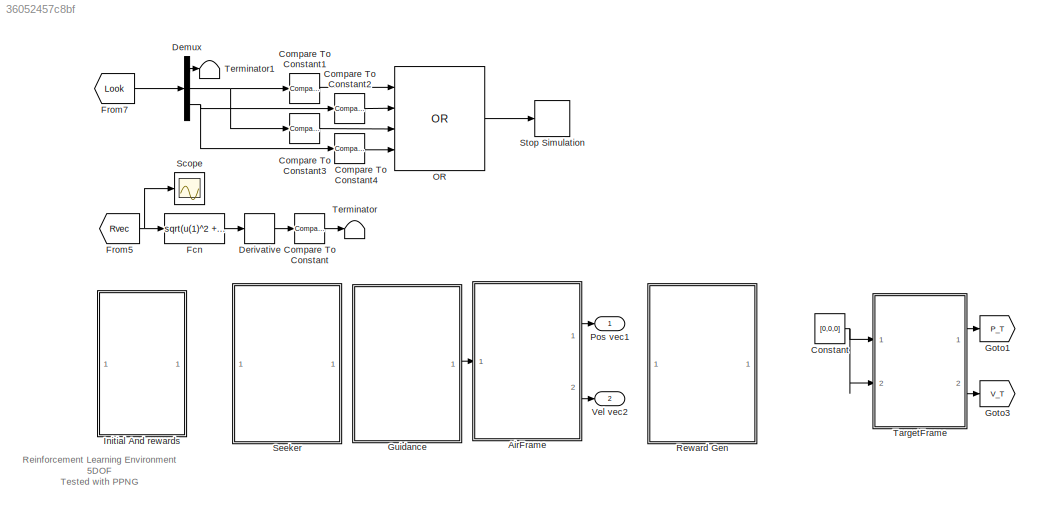
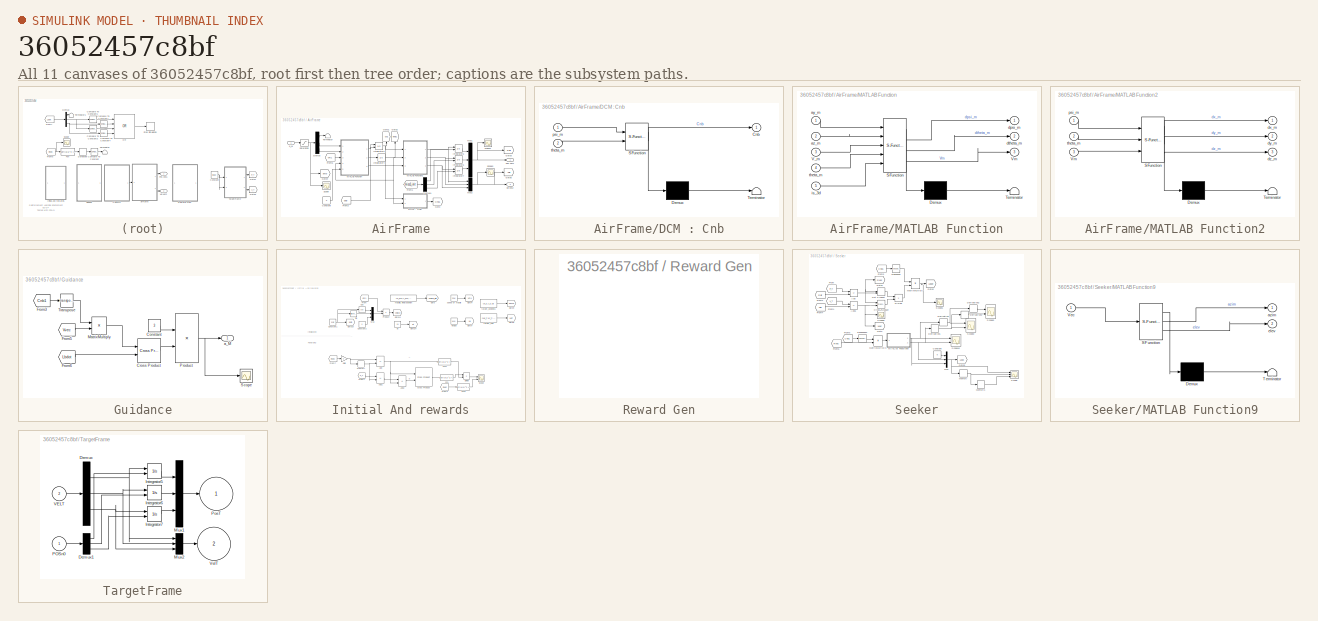
[diagram: thumbnail index - all 11 canvases of the model, root first then tree order]
MODEL slx_36052457c8bf
KIND model
CONFIG AbsTol = auto
CONFIG EnableMultiTasking = off
CONFIG FixedStep = 0.01
CONFIG MaxStep = auto
CONFIG MinStep = auto
CONFIG RelTol = 1e-3
CONFIG SampleTimeConstraint = Unconstrained
CONFIG Solver = FixedStepAuto
CONFIG SolverName = FixedStepAuto
CONFIG StartTime = 0.0
CONFIG StopTime = 200
BLOCK [SubSystem] AirFrame
  Ports = [1, 2]
  RequestExecContextInheritance = off
BLOCK [Constant] AirFrame/Constant
  Value = 0
BLOCK [SubSystem] AirFrame/DCM : Cnb
  ErrorFcn = Stateflow.Translate.translate
  PermitHierarchicalResolution = ExplicitOnly
  Ports = [2, 1]
  RequestExecContextInheritance = off
  SFBlockType = MATLAB Function
  TreatAsAtomicUnit = on
BLOCK [Demux] AirFrame/DCM : Cnb/ Demux 
  Outputs = 1
  Ports = [1, 1]
BLOCK [S-Function] AirFrame/DCM : Cnb/ SFunction 
  EnableBusSupport = on
  FunctionName = sf_sfun
  PortCounts = [2 2]
  Ports = [2, 2]
  SFcnIsStateOwnerBlock = off
  SFunctionDeploymentMode = off
  Tag = Stateflow S-Function 1
BLOCK [Terminator] AirFrame/DCM : Cnb/ Terminator 
BLOCK [Outport] AirFrame/DCM : Cnb/Cnb
  VectorParamsAs1DForOutWhenUnconnected = off
BLOCK [Inport] AirFrame/DCM : Cnb/psi_m
BLOCK [Inport] AirFrame/DCM : Cnb/theta_m
  Port = 2
BLOCK [Demux] AirFrame/Demux
  Outputs = 3
  Ports = [1, 3]
BLOCK [Demux] AirFrame/Demux1
  Outputs = 3
  Ports = [1, 3]
BLOCK [From] AirFrame/From1
  GotoTag = miss1_init
  TagVisibility = global
BLOCK [From] AirFrame/From2
  GotoTag = psi0
  TagVisibility = global
BLOCK [From] AirFrame/From5
  GotoTag = Vm1
  TagVisibility = global
BLOCK [Goto] AirFrame/Goto
  GotoTag = Cnb1
  TagVisibility = global
BLOCK [Goto] AirFrame/Goto1
  GotoTag = psi1
  NameLocation = right
  TagVisibility = global
BLOCK [Goto] AirFrame/Goto2
  GotoTag = theta1
  NameLocation = right
  TagVisibility = global
BLOCK [Goto] AirFrame/Goto3
  GotoTag = Rdir
  TagVisibility = global
BLOCK [Goto] AirFrame/Goto4
  GotoTag = amb
  TagVisibility = global
BLOCK [Goto] AirFrame/Goto5
  GotoTag = Vdir
  TagVisibility = global
BLOCK [Integrator] AirFrame/Integrator3
  InitialConditionSource = external
  Ports = [2, 1]
BLOCK [Integrator] AirFrame/Integrator4
  Ports = [1, 1]
BLOCK [Integrator] AirFrame/Integrator5
  InitialConditionSource = external
  Ports = [2, 1]
BLOCK [Integrator] AirFrame/Integrator6
  InitialConditionSource = external
  Ports = [2, 1]
BLOCK [Integrator] AirFrame/Integrator7
  InitialConditionSource = external
  Ports = [2, 1]
BLOCK [SubSystem] AirFrame/MATLAB Function
  ErrorFcn = Stateflow.Translate.translate
  PermitHierarchicalResolution = ExplicitOnly
  Ports = [5, 3]
  RequestExecContextInheritance = off
  SFBlockType = MATLAB Function
  TreatAsAtomicUnit = on
BLOCK [Demux] AirFrame/MATLAB Function/ Demux 
  Outputs = 1
  Ports = [1, 1]
BLOCK [S-Function] AirFrame/MATLAB Function/ SFunction 
  EnableBusSupport = on
  FunctionName = sf_sfun
  PortCounts = [5 4]
  Ports = [5, 4]
  SFcnIsStateOwnerBlock = off
  SFunctionDeploymentMode = off
  Tag = Stateflow S-Function 24
BLOCK [Terminator] AirFrame/MATLAB Function/ Terminator 
BLOCK [Inport] AirFrame/MATLAB Function/V_m
  Port = 3
BLOCK [Outport] AirFrame/MATLAB Function/Vm
  Port = 3
  VectorParamsAs1DForOutWhenUnconnected = off
BLOCK [Inport] AirFrame/MATLAB Function/ay_m
BLOCK [Inport] AirFrame/MATLAB Function/az_m
  Port = 2
BLOCK [Outport] AirFrame/MATLAB Function/dpsi_m
  VectorParamsAs1DForOutWhenUnconnected = off
BLOCK [Outport] AirFrame/MATLAB Function/dtheta_m
  Port = 2
  VectorParamsAs1DForOutWhenUnconnected = off
BLOCK [Inport] AirFrame/MATLAB Function/is_3d
  Port = 5
BLOCK [Inport] AirFrame/MATLAB Function/theta_m
  Port = 4
BLOCK [SubSystem] AirFrame/MATLAB Function2
  ErrorFcn = Stateflow.Translate.translate
  PermitHierarchicalResolution = ExplicitOnly
  Ports = [3, 3]
  RequestExecContextInheritance = off
  SFBlockType = MATLAB Function
  TreatAsAtomicUnit = on
BLOCK [Demux] AirFrame/MATLAB Function2/ Demux 
  Outputs = 1
  Ports = [1, 1]
BLOCK [S-Function] AirFrame/MATLAB Function2/ SFunction 
  EnableBusSupport = on
  FunctionName = sf_sfun
  PortCounts = [3 4]
  Ports = [3, 4]
  SFcnIsStateOwnerBlock = off
  SFunctionDeploymentMode = off
  Tag = Stateflow S-Function 25
BLOCK [Terminator] AirFrame/MATLAB Function2/ Terminator 
BLOCK [Inport] AirFrame/MATLAB Function2/Vm
  Port = 3
BLOCK [Outport] AirFrame/MATLAB Function2/dx_m
  VectorParamsAs1DForOutWhenUnconnected = off
BLOCK [Outport] AirFrame/MATLAB Function2/dy_m
  Port = 2
  VectorParamsAs1DForOutWhenUnconnected = off
BLOCK [Outport] AirFrame/MATLAB Function2/dz_m
  Port = 3
  VectorParamsAs1DForOutWhenUnconnected = off
BLOCK [Inport] AirFrame/MATLAB Function2/psi_m
BLOCK [Inport] AirFrame/MATLAB Function2/theta_m
  Port = 2
BLOCK [Mux] AirFrame/Mux1
  DisplayOption = bar
  Inputs = 3
  Ports = [3, 1]
BLOCK [Mux] AirFrame/Mux2
  DisplayOption = bar
  Inputs = 3
  Ports = [3, 1]
BLOCK [Outport] AirFrame/Pos vec1
  VectorParamsAs1DForOutWhenUnconnected = off
BLOCK [Saturate] AirFrame/Saturation
  LinearizeAsGain = off
  LowerLimit = [0;-99;-99]
  UpperLimit = [0;99;99]
  ZeroCross = off
BLOCK [Scope] AirFrame/Scope
  Floating = off
  NumInputPorts = 1
  Ports = [1]
  ScopeSpecificationString = Simulink.scopes.TimeScopeBlockCfg('CurrentConfiguration', extmgr.ConfigurationSet(extmgr.Configuration('Core','General UI',true),extmgr.Configuration('Core','Source UI',true),extmgr.Configuration('Sources','WiredSimulink',true,'DataLoggingVariableName','ScopeData1'),extmgr.Configuration('Visuals','Time Domain',true,'SerializedDisplays',{struct('MinYLimReal','-62.5','MaxYLimReal','62.5','YLabelReal...<+1524ch>
BLOCK [Scope] AirFrame/Scope1
  Floating = off
  NumInputPorts = 1
  Ports = [1]
  ScopeSpecificationString = Simulink.scopes.TimeScopeBlockCfg('CurrentConfiguration', extmgr.ConfigurationSet(extmgr.Configuration('Core','General UI',true),extmgr.Configuration('Core','Source UI',true),extmgr.Configuration('Sources','WiredSimulink',true,'DataLoggingVariableName','ScopeData3'),extmgr.Configuration('Visuals','Time Domain',true,'SerializedDisplays',{struct('MinYLimReal','-1125.62717','MaxYLimReal','130.64452',...<+1490ch>
BLOCK [Scope] AirFrame/Scope3
  Floating = off
  NumInputPorts = 1
  Ports = [1]
  ScopeSpecificationString = Simulink.scopes.TimeScopeBlockCfg('CurrentConfiguration', extmgr.ConfigurationSet(extmgr.Configuration('Core','General UI',true),extmgr.Configuration('Core','Source UI',true),extmgr.Configuration('Sources','WiredSimulink',true),extmgr.Configuration('Visuals','Time Domain',true,'SerializedDisplays',{struct('MinYLimReal','-346.67616','MaxYLimReal','349.63068','YLabelReal','','MinYLimMag',' 0.00000',...<+1436ch>
BLOCK [Terminator] AirFrame/Terminator
BLOCK [Outport] AirFrame/Vel vec2
  Port = 2
  VectorParamsAs1DForOutWhenUnconnected = off
BLOCK [Inport] AirFrame/a_M
BLOCK [Reference] Compare To Constant  REF=simulink/Logic and Bit
Operations/Compare
To Constant
  Ports = [1, 1]
  SourceBlock = simulink/Logic and Bit\nOperations/Compare\nTo Constant
  SourceProductBaseCode = SL
  SourceType = Compare To Constant
BLOCK [Reference] Compare To Constant1  REF=simulink/Logic and Bit
Operations/Compare
To Constant
  Ports = [1, 1]
  SourceBlock = simulink/Logic and Bit\nOperations/Compare\nTo Constant
  SourceProductBaseCode = SL
  SourceType = Compare To Constant
BLOCK [Reference] Compare To Constant2  REF=simulink/Logic and Bit
Operations/Compare
To Constant
  Ports = [1, 1]
  SourceBlock = simulink/Logic and Bit\nOperations/Compare\nTo Constant
  SourceProductBaseCode = SL
  SourceType = Compare To Constant
BLOCK [Reference] Compare To Constant3  REF=simulink/Logic and Bit
Operations/Compare
To Constant
  Ports = [1, 1]
  SourceBlock = simulink/Logic and Bit\nOperations/Compare\nTo Constant
  SourceProductBaseCode = SL
  SourceType = Compare To Constant
BLOCK [Reference] Compare To Constant4  REF=simulink/Logic and Bit
Operations/Compare
To Constant
  Ports = [1, 1]
  SourceBlock = simulink/Logic and Bit\nOperations/Compare\nTo Constant
  SourceProductBaseCode = SL
  SourceType = Compare To Constant
BLOCK [Constant] Constant
  Value = [0,0,0]
BLOCK [Demux] Demux
  Outputs = 3
  Ports = [1, 3]
BLOCK [Derivative] Derivative
BLOCK [Fcn] Fcn
  Expr = sqrt(u(1)^2 + u(2)^2 + u(3)^2)
BLOCK [From] From5
  GotoTag = Rvec
  TagVisibility = global
BLOCK [From] From7
  GotoTag = Look
  TagVisibility = global
BLOCK [Goto] Goto1
  GotoTag = P_T
  TagVisibility = global
BLOCK [Goto] Goto3
  GotoTag = V_T
  TagVisibility = global
BLOCK [SubSystem] Guidance
  Ports = [0, 1]
  RequestExecContextInheritance = off
BLOCK [Constant] Guidance/Constant
  Value = 3
BLOCK [Reference] Guidance/Cross Product  REF=vrlib/Utilities/Cross Product
  Ports = [2, 1]
  SourceBlock = vrlib/Utilities/Cross Product
  SourceProductBaseCode = SL
  SourceType = Cross Product
BLOCK [From] Guidance/From3
  GotoTag = Cnb1
  TagVisibility = global
BLOCK [From] Guidance/From5
  GotoTag = Vvec
  TagVisibility = global
BLOCK [From] Guidance/From6
  GotoTag = Lbdot
  TagVisibility = global
BLOCK [Product] Guidance/MatrixMultiply
  Multiplication = Matrix(*)
  Ports = [2, 1]
BLOCK [Product] Guidance/Product
  Ports = [2, 1]
BLOCK [Scope] Guidance/Scope
  Floating = off
  NumInputPorts = 1
  Ports = [1]
  ScopeSpecificationString = Simulink.scopes.TimeScopeBlockCfg('CurrentConfiguration', extmgr.ConfigurationSet(extmgr.Configuration('Core','General UI',true),extmgr.Configuration('Core','Source UI',true),extmgr.Configuration('Sources','WiredSimulink',true,'DataLoggingVariableName','ScopeData4'),extmgr.Configuration('Visuals','Time Domain',true,'SerializedDisplays',{struct('MinYLimReal','-126.23467','MaxYLimReal','874.16088','...<+1431ch>
BLOCK [Math] Guidance/Transpose
  Operator = transpose
  Ports = [1, 1]
BLOCK [Outport] Guidance/a_M
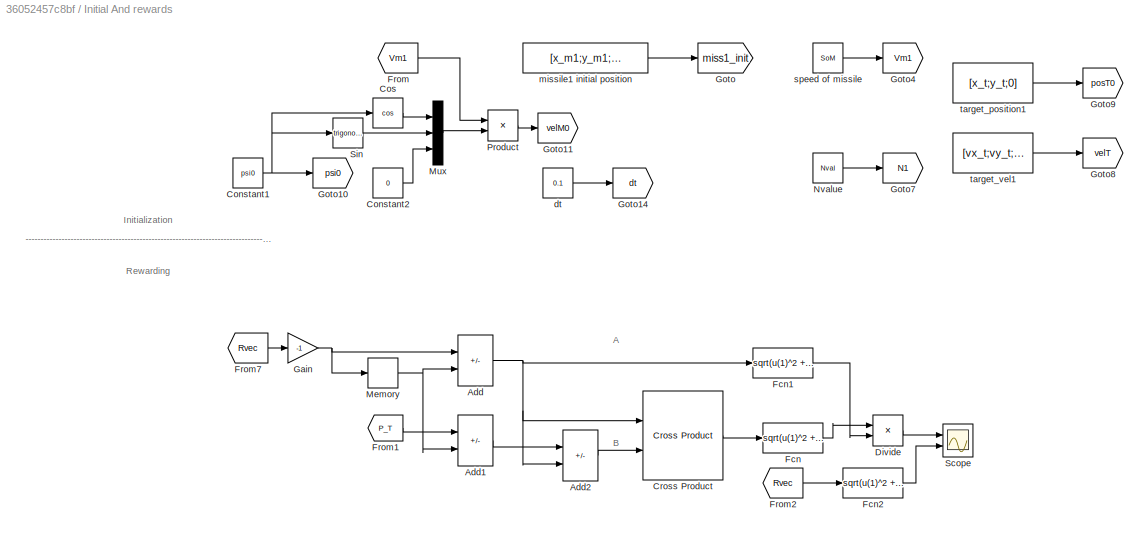
BLOCK [SubSystem] Initial And rewards
  NameLocation = top
  Ports = []
  RequestExecContextInheritance = off
BLOCK [Sum] Initial And rewards/Add
  IconShape = rectangular
  Inputs = +-
  Ports = [2, 1]
BLOCK [Sum] Initial And rewards/Add1
  IconShape = rectangular
  Inputs = +-
  Ports = [2, 1]
BLOCK [Sum] Initial And rewards/Add2
  IconShape = rectangular
  Inputs = +-
  Ports = [2, 1]
BLOCK [Constant] Initial And rewards/Constant1
  Value = psi0
BLOCK [Constant] Initial And rewards/Constant2
  Value = 0
BLOCK [Trigonometry] Initial And rewards/Cos
  Operator = cos
  Ports = [1, 1]
BLOCK [Reference] Initial And rewards/Cross Product  REF=vrlib/Utilities/Cross Product
  Ports = [2, 1]
  SourceBlock = vrlib/Utilities/Cross Product
  SourceProductBaseCode = SL
  SourceType = Cross Product
BLOCK [Product] Initial And rewards/Divide
  Inputs = */
  Ports = [2, 1]
BLOCK [Fcn] Initial And rewards/Fcn
  Expr = sqrt(u(1)^2 + u(2)^2 + u(3)^2)
BLOCK [Fcn] Initial And rewards/Fcn1
  Expr = sqrt(u(1)^2 + u(2)^2 + u(3)^2)
BLOCK [Fcn] Initial And rewards/Fcn2
  Expr = sqrt(u(1)^2 + u(2)^2 + u(3)^2)
BLOCK [From] Initial And rewards/From
  GotoTag = Vm1
  TagVisibility = global
BLOCK [From] Initial And rewards/From1
  GotoTag = P_T
  TagVisibility = global
BLOCK [From] Initial And rewards/From2
  GotoTag = Rvec
  TagVisibility = global
BLOCK [From] Initial And rewards/From7
  GotoTag = Rvec
  TagVisibility = global
BLOCK [Gain] Initial And rewards/Gain
  Gain = -1
BLOCK [Goto] Initial And rewards/Goto
  GotoTag = miss1_init
  TagVisibility = global
BLOCK [Goto] Initial And rewards/Goto10
  GotoTag = psi0
  TagVisibility = global
BLOCK [Goto] Initial And rewards/Goto11
  GotoTag = velM0
  TagVisibility = global
BLOCK [Goto] Initial And rewards/Goto14
  GotoTag = dt
  TagVisibility = global
BLOCK [Goto] Initial And rewards/Goto4
  GotoTag = Vm1
  TagVisibility = global
BLOCK [Goto] Initial And rewards/Goto7
  GotoTag = N1
  TagVisibility = global
BLOCK [Goto] Initial And rewards/Goto8
  GotoTag = velT
  TagVisibility = global
BLOCK [Goto] Initial And rewards/Goto9
  GotoTag = posT0
  TagVisibility = global
BLOCK [Memory] Initial And rewards/Memory
  InitialCondition = [x_m1;y_m1;z_m1]
  LinearizeAsDelay = on
BLOCK [Mux] Initial And rewards/Mux
  DisplayOption = bar
  Inputs = 3
  Ports = [3, 1]
BLOCK [Constant] Initial And rewards/Nvalue
  Value = Nval
BLOCK [Product] Initial And rewards/Product
  Ports = [2, 1]
BLOCK [Scope] Initial And rewards/Scope
  Floating = off
  NumInputPorts = 2
  Ports = [2]
  ScopeSpecificationString = Simulink.scopes.TimeScopeBlockCfg('CurrentConfiguration', extmgr.ConfigurationSet(extmgr.Configuration('Core','General UI',true),extmgr.Configuration('Core','Source UI',true),extmgr.Configuration('Sources','WiredSimulink',true,'DataLoggingVariableName','ScopeData10'),extmgr.Configuration('Visuals','Time Domain',true,'SerializedDisplays',{struct('MinYLimReal','-1403.12138','MaxYLimReal','12628.0936...<+1473ch>
BLOCK [Trigonometry] Initial And rewards/Sin
  Ports = [1, 1]
BLOCK [Constant] Initial And rewards/dt
  Value = 0.1
BLOCK [Constant] Initial And rewards/missile1 initial position
  Value = [x_m1;y_m1;z_m1]
BLOCK [Constant] Initial And rewards/speed of missile
  Value = SoM
BLOCK [Constant] Initial And rewards/target_position1
  Value = [x_t;y_t;0]
BLOCK [Constant] Initial And rewards/target_vel1
  Value = [vx_t;vy_t;0]
BLOCK [Logic] OR
  AllPortsSameDT = off
  IconShape = distinctive
  Inputs = 4
  Operator = OR
  OutDataTypeStr = boolean
  Ports = [4, 1]
BLOCK [Outport] Pos vec1
  VectorParamsAs1DForOutWhenUnconnected = off
BLOCK [SubSystem] Reward Gen
  Ports = []
  RequestExecContextInheritance = off
BLOCK [Scope] Scope
  Floating = off
  NumInputPorts = 1
  Ports = [1]
  ScopeSpecificationString = Simulink.scopes.TimeScopeBlockCfg('CurrentConfiguration', extmgr.ConfigurationSet(extmgr.Configuration('Core','General UI',true),extmgr.Configuration('Core','Source UI',true),extmgr.Configuration('Sources','WiredSimulink',true,'DataLoggingVariableName','ScopeData5'),extmgr.Configuration('Visuals','Time Domain',true,'SerializedDisplays',{struct('MinYLimReal','-6875.00000','MaxYLimReal','11875.00000...<+1461ch>
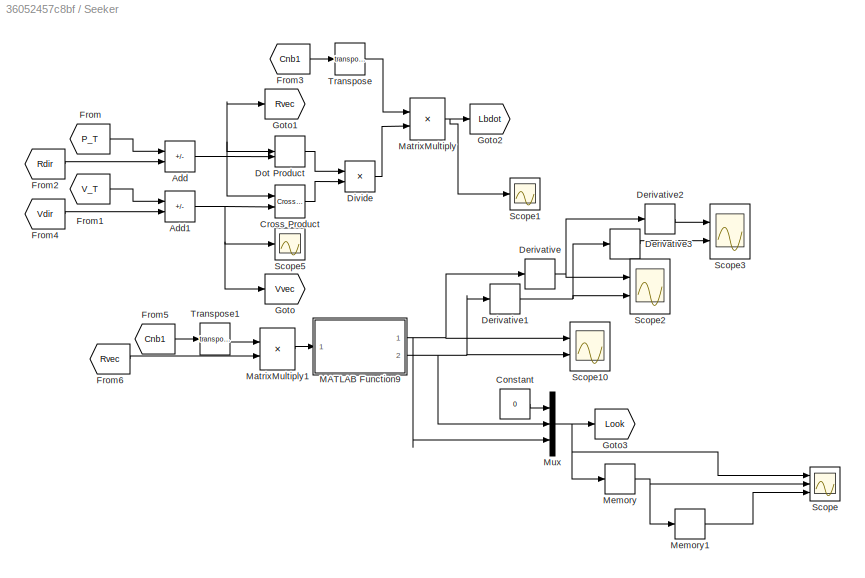
BLOCK [SubSystem] Seeker
  Ports = []
  RequestExecContextInheritance = off
BLOCK [Sum] Seeker/Add
  IconShape = rectangular
  Inputs = +-
  Ports = [2, 1]
BLOCK [Sum] Seeker/Add1
  IconShape = rectangular
  Inputs = +-
  Ports = [2, 1]
BLOCK [Constant] Seeker/Constant
  Value = 0
BLOCK [Reference] Seeker/Cross Product  REF=vrlib/Utilities/Cross Product
  Ports = [2, 1]
  SourceBlock = vrlib/Utilities/Cross Product
  SourceProductBaseCode = SL
  SourceType = Cross Product
BLOCK [Derivative] Seeker/Derivative
BLOCK [Derivative] Seeker/Derivative1
BLOCK [Derivative] Seeker/Derivative2
BLOCK [Derivative] Seeker/Derivative3
BLOCK [Product] Seeker/Divide
  Inputs = /*
  Ports = [2, 1]
BLOCK [DotProduct] Seeker/Dot Product
  OutDataTypeStr = Inherit: Inherit via internal rule
BLOCK [From] Seeker/From
  GotoTag = P_T
  TagVisibility = global
BLOCK [From] Seeker/From1
  GotoTag = V_T
  TagVisibility = global
BLOCK [From] Seeker/From2
  GotoTag = Rdir
  TagVisibility = global
BLOCK [From] Seeker/From3
  GotoTag = Cnb1
  TagVisibility = global
BLOCK [From] Seeker/From4
  GotoTag = Vdir
  TagVisibility = global
BLOCK [From] Seeker/From5
  GotoTag = Cnb1
  TagVisibility = global
BLOCK [From] Seeker/From6
  GotoTag = Rvec
  TagVisibility = global
BLOCK [Goto] Seeker/Goto
  GotoTag = Vvec
  TagVisibility = global
BLOCK [Goto] Seeker/Goto1
  GotoTag = Rvec
  TagVisibility = global
BLOCK [Goto] Seeker/Goto2
  GotoTag = Lbdot
  TagVisibility = global
BLOCK [Goto] Seeker/Goto3
  GotoTag = Look
  TagVisibility = global
BLOCK [SubSystem] Seeker/MATLAB Function9
  ErrorFcn = Stateflow.Translate.translate
  PermitHierarchicalResolution = ExplicitOnly
  Ports = [1, 2]
  RequestExecContextInheritance = off
  SFBlockType = MATLAB Function
  TreatAsAtomicUnit = on
BLOCK [Demux] Seeker/MATLAB Function9/ Demux 
  Outputs = 1
  Ports = [1, 1]
BLOCK [S-Function] Seeker/MATLAB Function9/ SFunction 
  EnableBusSupport = on
  FunctionName = sf_sfun
  PortCounts = [1 3]
  Ports = [1, 3]
  SFcnIsStateOwnerBlock = off
  SFunctionDeploymentMode = off
  Tag = Stateflow S-Function 10
BLOCK [Terminator] Seeker/MATLAB Function9/ Terminator 
BLOCK [Inport] Seeker/MATLAB Function9/Vec
BLOCK [Outport] Seeker/MATLAB Function9/azim
BLOCK [Outport] Seeker/MATLAB Function9/elev
  Port = 2
BLOCK [Product] Seeker/MatrixMultiply
  Multiplication = Matrix(*)
  Ports = [2, 1]
BLOCK [Product] Seeker/MatrixMultiply1
  Multiplication = Matrix(*)
  Ports = [2, 1]
BLOCK [Memory] Seeker/Memory
  LinearizeAsDelay = on
BLOCK [Memory] Seeker/Memory1
  LinearizeAsDelay = on
BLOCK [Mux] Seeker/Mux
  DisplayOption = bar
  Inputs = 3
  Ports = [3, 1]
BLOCK [Scope] Seeker/Scope
  Floating = off
  NumInputPorts = 3
  Ports = [3]
  ScopeSpecificationString = Simulink.scopes.TimeScopeBlockCfg('CurrentConfiguration', extmgr.ConfigurationSet(extmgr.Configuration('Core','General UI',true),extmgr.Configuration('Core','Source UI',true),extmgr.Configuration('Sources','WiredSimulink',true,'DataLoggingVariableName','ScopeData11'),extmgr.Configuration('Visuals','Time Domain',true,'SerializedDisplays',{struct('MinYLimReal','-3.21547','MaxYLimReal','0.12727','YLa...<+1767ch>
BLOCK [Scope] Seeker/Scope1
  Floating = off
  NumInputPorts = 1
  Ports = [1]
  ScopeSpecificationString = Simulink.scopes.TimeScopeBlockCfg('CurrentConfiguration', extmgr.ConfigurationSet(extmgr.Configuration('Core','General UI',true),extmgr.Configuration('Core','Source UI',true),extmgr.Configuration('Sources','WiredSimulink',true,'DataLoggingVariableName','ScopeData7'),extmgr.Configuration('Visuals','Time Domain',true,'SerializedDisplays',{struct('MinYLimReal','-1.04067','MaxYLimReal','0.15028','YLab...<+1468ch>
BLOCK [Scope] Seeker/Scope10
  Floating = off
  NumInputPorts = 2
  Ports = [2]
  ScopeSpecificationString = Simulink.scopes.TimeScopeBlockCfg('CurrentConfiguration', extmgr.ConfigurationSet(extmgr.Configuration('Core','General UI',true),extmgr.Configuration('Core','Source UI',true),extmgr.Configuration('Sources','WiredSimulink',true,'DataLoggingVariableName','ScopeData6'),extmgr.Configuration('Visuals','Time Domain',true,'SerializedDisplays',{struct('MinYLimReal','-3.57622','MaxYLimReal','0.77004','YLab...<+1460ch>
BLOCK [Scope] Seeker/Scope2
  Floating = off
  NumInputPorts = 2
  Ports = [2]
  ScopeSpecificationString = Simulink.scopes.TimeScopeBlockCfg('CurrentConfiguration', extmgr.ConfigurationSet(extmgr.Configuration('Core','General UI',true),extmgr.Configuration('Core','Source UI',true),extmgr.Configuration('Sources','WiredSimulink',true,'DataLoggingVariableName','ScopeData8'),extmgr.Configuration('Visuals','Time Domain',true,'SerializedDisplays',{struct('MinYLimReal','-353.43343','MaxYLimReal','39.30962','Y...<+1450ch>
BLOCK [Scope] Seeker/Scope3
  Floating = off
  NumInputPorts = 2
  Ports = [2]
  ScopeSpecificationString = Simulink.scopes.TimeScopeBlockCfg('CurrentConfiguration', extmgr.ConfigurationSet(extmgr.Configuration('Core','General UI',true),extmgr.Configuration('Core','Source UI',true),extmgr.Configuration('Sources','WiredSimulink',true,'DataLoggingVariableName','ScopeData9'),extmgr.Configuration('Visuals','Time Domain',true,'SerializedDisplays',{struct('MinYLimReal','-0.01046','MaxYLimReal','0.01268','YLab...<+1458ch>
BLOCK [Scope] Seeker/Scope5
  Floating = off
  NumInputPorts = 1
  Ports = [1]
  ScopeSpecificationString = Simulink.scopes.TimeScopeBlockCfg('CurrentConfiguration', extmgr.ConfigurationSet(extmgr.Configuration('Core','General UI',true),extmgr.Configuration('Core','Source UI',true),extmgr.Configuration('Sources','WiredSimulink',true,'DataLoggingVariableName','ScopeData2'),extmgr.Configuration('Visuals','Time Domain',true,'SerializedDisplays',{struct('MinYLimReal','-336.27459','MaxYLimReal','226.47129','...<+1453ch>
BLOCK [Math] Seeker/Transpose
  Operator = transpose
  Ports = [1, 1]
BLOCK [Math] Seeker/Transpose1
  Operator = transpose
  Ports = [1, 1]
BLOCK [Stop] Stop Simulation
BLOCK [SubSystem] TargetFrame
  Ports = [2, 2]
  RequestExecContextInheritance = off
BLOCK [Demux] TargetFrame/Demux
  Outputs = 3
  Ports = [1, 3]
BLOCK [Demux] TargetFrame/Demux1
  Outputs = 3
  Ports = [1, 3]
BLOCK [Integrator] TargetFrame/Integrator5
  InitialConditionSource = external
  Ports = [2, 1]
BLOCK [Integrator] TargetFrame/Integrator6
  InitialConditionSource = external
  Ports = [2, 1]
BLOCK [Integrator] TargetFrame/Integrator7
  InitialConditionSource = external
  Ports = [2, 1]
BLOCK [Mux] TargetFrame/Mux1
  DisplayOption = bar
  Inputs = 3
  Ports = [3, 1]
BLOCK [Mux] TargetFrame/Mux2
  DisplayOption = bar
  Inputs = 3
  Ports = [3, 1]
BLOCK [Inport] TargetFrame/POSn0
BLOCK [Outport] TargetFrame/PosT
  VectorParamsAs1DForOutWhenUnconnected = off
BLOCK [Inport] TargetFrame/VELT
  Port = 2
BLOCK [Outport] TargetFrame/VelT
  Port = 2
  VectorParamsAs1DForOutWhenUnconnected = off
BLOCK [Terminator] Terminator
BLOCK [Terminator] Terminator1
BLOCK [Outport] Vel vec2
  Port = 2
  VectorParamsAs1DForOutWhenUnconnected = off
ANNOTATION (root): Reinforcement Learning Environment 5DOF Tested with PPNG
ANNOTATION Initial And rewards: Initialization
ANNOTATION Initial And rewards: Rewarding
ANNOTATION Initial And rewards: ---------------------------------------------------------------------------------------------------------
ANNOTATION Initial And rewards: A
ANNOTATION Initial And rewards: B
LINE AirFrame/Constant:1 -> AirFrame/MATLAB Function:5
LINE AirFrame/DCM : Cnb:1 -> AirFrame/Goto:1
LINE AirFrame/Demux1:1 -> AirFrame/Integrator5:2
LINE AirFrame/Demux1:2 -> AirFrame/Integrator6:2
LINE AirFrame/Demux1:3 -> AirFrame/Integrator7:2
LINE AirFrame/Demux:1 -> AirFrame/Terminator:1
LINE AirFrame/Demux:2 -> AirFrame/MATLAB Function:1
LINE AirFrame/Demux:3 -> AirFrame/MATLAB Function:2
LINE AirFrame/From1:1 -> AirFrame/Demux1:1
LINE AirFrame/From2:1 -> AirFrame/Integrator3:2
LINE AirFrame/From5:1 -> AirFrame/MATLAB Function:3
NET AirFrame/Integrator3:1 -> AirFrame/DCM : Cnb:1, AirFrame/Goto1:1, AirFrame/MATLAB Function2:1
NET AirFrame/Integrator4:1 -> AirFrame/DCM : Cnb:2, AirFrame/Goto2:1, AirFrame/MATLAB Function2:2, AirFrame/MATLAB Function:4
LINE AirFrame/Integrator5:1 -> AirFrame/Mux1:1
LINE AirFrame/Integrator6:1 -> AirFrame/Mux1:2
LINE AirFrame/Integrator7:1 -> AirFrame/Mux1:3
NET AirFrame/MATLAB Function2:1 -> AirFrame/Integrator5:1, AirFrame/Mux2:1
NET AirFrame/MATLAB Function2:2 -> AirFrame/Integrator6:1, AirFrame/Mux2:2
NET AirFrame/MATLAB Function2:3 -> AirFrame/Integrator7:1, AirFrame/Mux2:3
LINE AirFrame/MATLAB Function:1 -> AirFrame/Integrator3:1
LINE AirFrame/MATLAB Function:2 -> AirFrame/Integrator4:1
LINE AirFrame/MATLAB Function:3 -> AirFrame/MATLAB Function2:3
NET AirFrame/Mux1:1 -> AirFrame/Goto3:1, AirFrame/Pos vec1:1, AirFrame/Scope1:1
NET AirFrame/Mux2:1 -> AirFrame/Goto5:1, AirFrame/Scope3:1, AirFrame/Vel vec2:1
NET AirFrame/Saturation:1 -> AirFrame/Demux:1, AirFrame/Goto4:1, AirFrame/Scope:1
LINE AirFrame/a_M:1 -> AirFrame/Saturation:1
LINE AirFrame:1 -> Pos vec1:1
LINE AirFrame:2 -> Vel vec2:1
LINE Compare To Constant1:1 -> OR:1
LINE Compare To Constant2:1 -> OR:2
LINE Compare To Constant3:1 -> OR:3
LINE Compare To Constant4:1 -> OR:4
LINE Compare To Constant:1 -> Terminator:1
NET Constant:1 -> TargetFrame:1, TargetFrame:2
LINE Demux:1 -> Terminator1:1
NET Demux:2 -> Compare To Constant1:1, Compare To Constant3:1
NET Demux:3 -> Compare To Constant2:1, Compare To Constant4:1
LINE Derivative:1 -> Compare To Constant:1
LINE Fcn:1 -> Derivative:1
NET From5:1 -> Fcn:1, Scope:1
LINE From7:1 -> Demux:1
LINE Guidance/Constant:1 -> Guidance/Product:1
LINE Guidance/Cross Product:1 -> Guidance/Product:2
LINE Guidance/From3:1 -> Guidance/Transpose:1
LINE Guidance/From5:1 -> Guidance/MatrixMultiply:2
LINE Guidance/From6:1 -> Guidance/Cross Product:2
LINE Guidance/MatrixMultiply:1 -> Guidance/Cross Product:1
NET Guidance/Product:1 -> Guidance/Scope:1, Guidance/a_M:1
LINE Guidance/Transpose:1 -> Guidance/MatrixMultiply:1
LINE Guidance:1 -> AirFrame:1
LINE Initial And rewards/Add1:1 -> Initial And rewards/Add2:1
LINE Initial And rewards/Add2:1 -> Initial And rewards/Cross Product:2
NET Initial And rewards/Add:1 -> Initial And rewards/Add2:2, Initial And rewards/Cross Product:1, Initial And rewards/Fcn1:1
NET Initial And rewards/Constant1:1 -> Initial And rewards/Cos:1, Initial And rewards/Goto10:1, Initial And rewards/Sin:1
LINE Initial And rewards/Constant2:1 -> Initial And rewards/Mux:3
LINE Initial And rewards/Cos:1 -> Initial And rewards/Mux:1
LINE Initial And rewards/Cross Product:1 -> Initial And rewards/Fcn:1
LINE Initial And rewards/Divide:1 -> Initial And rewards/Scope:1
LINE Initial And rewards/Fcn1:1 -> Initial And rewards/Divide:2
LINE Initial And rewards/Fcn2:1 -> Initial And rewards/Scope:2
LINE Initial And rewards/Fcn:1 -> Initial And rewards/Divide:1
LINE Initial And rewards/From1:1 -> Initial And rewards/Add1:1
LINE Initial And rewards/From2:1 -> Initial And rewards/Fcn2:1
LINE Initial And rewards/From7:1 -> Initial And rewards/Gain:1
LINE Initial And rewards/From:1 -> Initial And rewards/Product:1
NET Initial And rewards/Gain:1 -> Initial And rewards/Add:1, Initial And rewards/Memory:1
NET Initial And rewards/Memory:1 -> Initial And rewards/Add1:2, Initial And rewards/Add:2
LINE Initial And rewards/Mux:1 -> Initial And rewards/Product:2
LINE Initial And rewards/Nvalue:1 -> Initial And rewards/Goto7:1
LINE Initial And rewards/Product:1 -> Initial And rewards/Goto11:1
LINE Initial And rewards/Sin:1 -> Initial And rewards/Mux:2
LINE Initial And rewards/dt:1 -> Initial And rewards/Goto14:1
LINE Initial And rewards/missile1 initial position:1 -> Initial And rewards/Goto:1
LINE Initial And rewards/speed of missile:1 -> Initial And rewards/Goto4:1
LINE Initial And rewards/target_position1:1 -> Initial And rewards/Goto9:1
LINE Initial And rewards/target_vel1:1 -> Initial And rewards/Goto8:1
LINE OR:1 -> Stop Simulation:1
NET Seeker/Add1:1 -> Seeker/Cross Product:2, Seeker/Goto:1, Seeker/Scope5:1
NET Seeker/Add:1 -> Seeker/Cross Product:1, Seeker/Dot Product:1, Seeker/Dot Product:2, Seeker/Goto1:1
LINE Seeker/Constant:1 -> Seeker/Mux:1
LINE Seeker/Cross Product:1 -> Seeker/Divide:2
NET Seeker/Derivative1:1 -> Seeker/Derivative3:1, Seeker/Scope2:2
LINE Seeker/Derivative2:1 -> Seeker/Scope3:1
LINE Seeker/Derivative3:1 -> Seeker/Scope3:2
NET Seeker/Derivative:1 -> Seeker/Derivative2:1, Seeker/Scope2:1
LINE Seeker/Divide:1 -> Seeker/MatrixMultiply:2
LINE Seeker/Dot Product:1 -> Seeker/Divide:1
LINE Seeker/From1:1 -> Seeker/Add1:1
LINE Seeker/From2:1 -> Seeker/Add:2
LINE Seeker/From3:1 -> Seeker/Transpose:1
LINE Seeker/From4:1 -> Seeker/Add1:2
LINE Seeker/From5:1 -> Seeker/Transpose1:1
LINE Seeker/From6:1 -> Seeker/MatrixMultiply1:2
LINE Seeker/From:1 -> Seeker/Add:1
NET Seeker/MATLAB Function9:1 -> Seeker/Derivative:1, Seeker/Mux:3, Seeker/Scope10:1
NET Seeker/MATLAB Function9:2 -> Seeker/Derivative1:1, Seeker/Mux:2, Seeker/Scope10:2
LINE Seeker/MatrixMultiply1:1 -> Seeker/MATLAB Function9:1
NET Seeker/MatrixMultiply:1 -> Seeker/Goto2:1, Seeker/Scope1:1
LINE Seeker/Memory1:1 -> Seeker/Scope:3
NET Seeker/Memory:1 -> Seeker/Memory1:1, Seeker/Scope:2
NET Seeker/Mux:1 -> Seeker/Goto3:1, Seeker/Memory:1, Seeker/Scope:1
LINE Seeker/Transpose1:1 -> Seeker/MatrixMultiply1:1
LINE Seeker/Transpose:1 -> Seeker/MatrixMultiply:1
LINE TargetFrame/Demux1:1 -> TargetFrame/Integrator5:2
LINE TargetFrame/Demux1:2 -> TargetFrame/Integrator6:2
LINE TargetFrame/Demux1:3 -> TargetFrame/Integrator7:2
NET TargetFrame/Demux:1 -> TargetFrame/Integrator5:1, TargetFrame/Mux2:1
NET TargetFrame/Demux:2 -> TargetFrame/Integrator6:1, TargetFrame/Mux2:2
NET TargetFrame/Demux:3 -> TargetFrame/Integrator7:1, TargetFrame/Mux2:3
LINE TargetFrame/Integrator5:1 -> TargetFrame/Mux1:1
LINE TargetFrame/Integrator6:1 -> TargetFrame/Mux1:2
LINE TargetFrame/Integrator7:1 -> TargetFrame/Mux1:3
LINE TargetFrame/Mux1:1 -> TargetFrame/PosT:1
LINE TargetFrame/Mux2:1 -> TargetFrame/VelT:1
LINE TargetFrame/POSn0:1 -> TargetFrame/Demux1:1
LINE TargetFrame/VELT:1 -> TargetFrame/Demux:1
LINE TargetFrame:1 -> Goto1:1
LINE TargetFrame:2 -> Goto3:1
note: NET lines group one-source signal fan-out (src -> all destinations, sorted); 1:1 wires keep LINE
CHART AirFrame/DCM : Cnb states=1 transitions=1
  STATE_LABEL 'eML_blk_kernel()'
  STATE_LABEL 'SCRIPT:\nfunction Cnb = fcn(psi_m, theta_m)\n\nCnb = [ cos(psi_m)*cos(theta_m),    -sin(psi_m),    cos(psi_m)*sin(theta_m);\n        sin(psi_m)*cos(theta_m),    cos(psi_m),     sin(psi_m)*sin(theta_m);\n        -sin(theta_m),              0,              cos(theta_m)];\n\nend\n% C_bn = [    cos(psi)*cos(the),  sin(psi)*cos(the),  -sin(the)   ;\n%             -sin(psi),          cos(psi),           0       ...<+74ch>'
CHART Seeker/MATLAB Function9 states=1 transitions=1
  STATE_LABEL 'eML_blk_kernel()'
  STATE_LABEL 'SCRIPT:\nfunction [azim, elev] = azim2elev(Vec)\n    \n    azim = atan2(Vec(2), Vec(1));\n    elev = atan2(-Vec(3), sqrt(Vec(1)^2 + Vec(2)^2));\n'
CHART AirFrame/MATLAB Function states=1 transitions=1
  STATE_LABEL 'eML_blk_kernel()'
  STATE_LABEL 'SCRIPT:\nfunction [dpsi_m, dtheta_m, Vm] = fcn(ay_m, az_m, V_m, theta_m, is_3d)\n\n%g = 9.81;\n\n%dpsi_m = ay_m/(V_m*cos(theta_m));\n%dtheta_m = -(az_m+g*cos(theta_m))/V_m;\n%Vm = V_m;\n    g = 9.81*is_3d;\n    if V_m <= eps\n        dpsi_m = 0;\n        dtheta_m = 0;\n    else\n        dpsi_m = ay_m/(V_m*cos(theta_m));\n        dtheta_m = -(az_m+g*cos(theta_m))/V_m;\n    end\n    Vm = V_m;\n\nend\n\n\n'
CHART AirFrame/MATLAB Function2 states=1 transitions=1
  STATE_LABEL 'eML_blk_kernel()'
  STATE_LABEL 'SCRIPT:\nfunction [dx_m, dy_m, dz_m] = fcn(psi_m, theta_m, Vm)\n\n\n\n    dx_m = Vm*cos(psi_m)*cos(theta_m);\n    dy_m = Vm*sin(psi_m)*cos(theta_m);\n    dz_m = -Vm*sin(theta_m);\nend\n'
CHART  states=0 transitions=0
CHART  states=0 transitions=0
CHART  states=0 transitions=0
CHART  states=0 transitions=0
